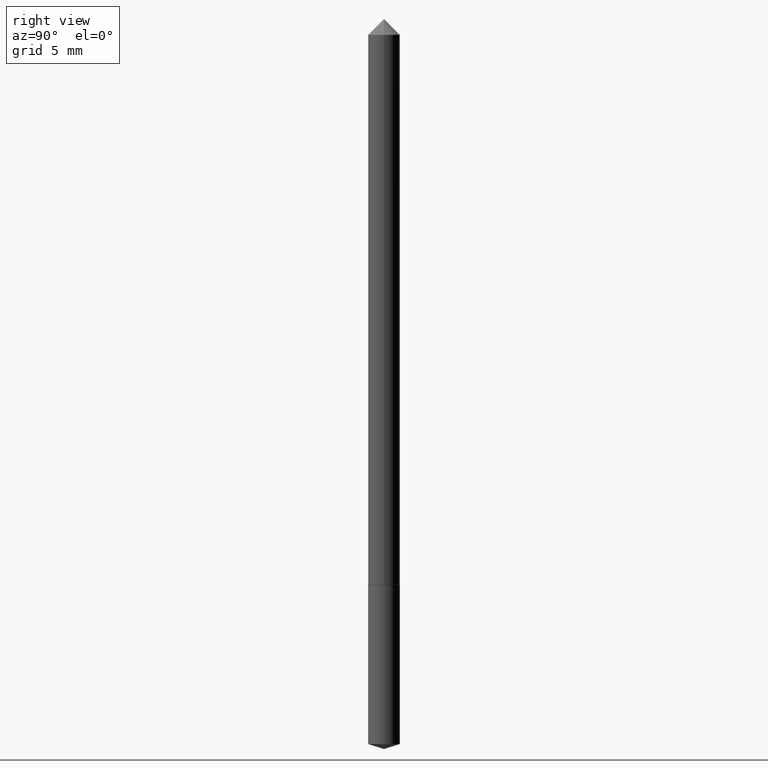
[diagram: clean part render]
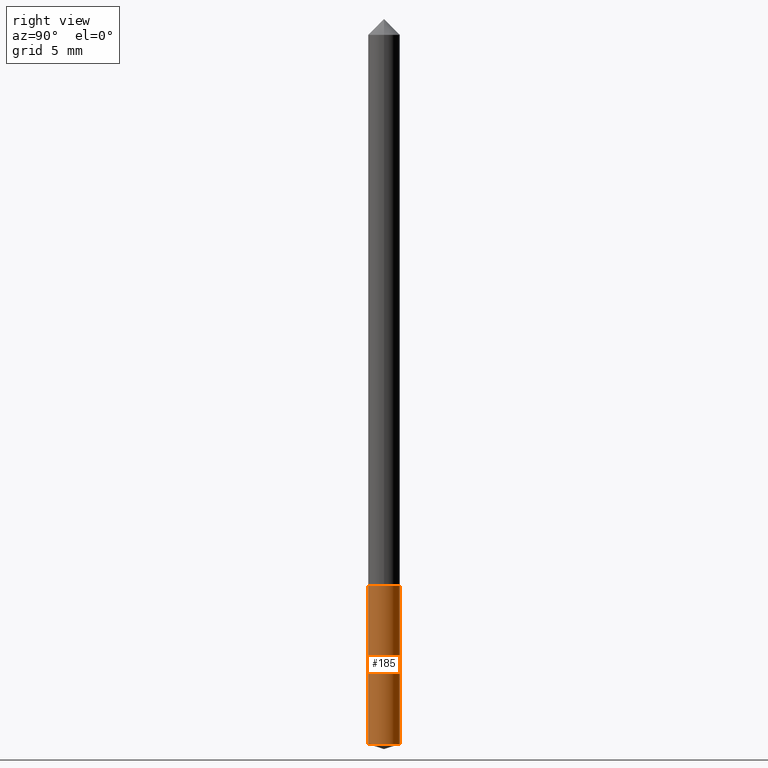
[diagram: same view with one face highlighted and labeled with its STEP entity id]
A machine part, right view. The second image highlights one B-rep face of the part: STEP entity #185.
In plain terms, the highlighted cylindrical surface (edge-blend (fillet) strip) has radius 0.6502 mm, axis along (-0, 0, 1).
Its self-contained STEP definition (entity closure, byte-faithful):
#6 = CARTESIAN_POINT ( 'NONE',  ( 2.243228535913626021E-29, -3.202735832120817848E-15, -0.9173000000000001153 ) ) ;
#22 = CARTESIAN_POINT ( 'NONE',  ( 1.818989403546143265E-16, 0.02559999999999589687, -1.173028351004698377 ) ) ;
#23 = VERTEX_POINT ( 'NONE', #22 ) ;
#27 = VECTOR ( 'NONE', #122, 39.37007874015748143 ) ;
#47 = EDGE_LOOP ( 'NONE', ( #64, #104, #87, #77 ) ) ;
#52 = DIRECTION ( 'NONE',  ( -2.445337482800842001E-29, 3.491669401403918305E-15, 1.000000000000000000 ) ) ;
#60 = VERTEX_POINT ( 'NONE', #350 ) ;
#64 = ORIENTED_EDGE ( 'NONE', *, *, #285, .T. ) ;
#66 = EDGE_CURVE ( 'NONE', #108, #60, #102, .T. ) ;
#72 = CARTESIAN_POINT ( 'NONE',  ( -1.787638445487459910E-16, -0.02560000000000320353, -0.9172999999999998932 ) ) ;
#77 = ORIENTED_EDGE ( 'NONE', *, *, #66, .F. ) ;
#79 = CARTESIAN_POINT ( 'NONE',  ( 2.868570658040264674E-29, -4.095654690395403261E-15, -1.173028351004698155 ) ) ;
#87 = ORIENTED_EDGE ( 'NONE', *, *, #325, .F. ) ;
#102 = LINE ( 'NONE', #72, #27 ) ;
#104 = ORIENTED_EDGE ( 'NONE', *, *, #332, .T. ) ;
#108 = VERTEX_POINT ( 'NONE', #236 ) ;
#118 = DIRECTION ( 'NONE',  ( -2.445337482800842001E-29, 3.491669401403918700E-15, 1.000000000000000000 ) ) ;
#122 = DIRECTION ( 'NONE',  ( -2.445337482800842001E-29, 3.491669401403918700E-15, 1.000000000000000000 ) ) ;
#145 = CARTESIAN_POINT ( 'NONE',  ( 1.818989403546144004E-16, 0.02559999999999680240, -0.9173000000000002263 ) ) ;
#162 = DIRECTION ( 'NONE',  ( -6.982962677686265133E-15, -1.000000000000000000, 5.335640612625512847E-15 ) ) ;
#184 = VERTEX_POINT ( 'NONE', #145 ) ;
#185 = ADVANCED_FACE ( 'NONE', ( #336 ), #278, .T. ) ;
#216 = CARTESIAN_POINT ( 'NONE',  ( 2.243228535913626021E-29, -3.202735832120817848E-15, -0.9173000000000001153 ) ) ;
#233 = LINE ( 'NONE', #287, #330 ) ;
#236 = CARTESIAN_POINT ( 'NONE',  ( -1.787638445487397048E-16, -0.02560000000000409517, -1.173028351004697933 ) ) ;
#246 = DIRECTION ( 'NONE',  ( -2.445337482800842001E-29, 3.491669401403918305E-15, 1.000000000000000000 ) ) ;
#278 = CYLINDRICAL_SURFACE ( 'NONE', #351, 0.02560000000000000470 ) ;
#285 = EDGE_CURVE ( 'NONE', #108, #23, #363, .T. ) ;
#287 = CARTESIAN_POINT ( 'NONE',  ( 1.818989403546080895E-16, 0.02559999999999680240, -0.9173000000000002263 ) ) ;
#292 = AXIS2_PLACEMENT_3D ( 'NONE', #79, #52, #301 ) ;
#301 = DIRECTION ( 'NONE',  ( -6.982962677686265133E-15, -1.000000000000000000, 5.335640612625512847E-15 ) ) ;
#302 = CIRCLE ( 'NONE', #335, 0.02560000000000000470 ) ;
#312 = DIRECTION ( 'NONE',  ( -6.982962677686265133E-15, -1.000000000000000000, 5.335640612625512847E-15 ) ) ;
#325 = EDGE_CURVE ( 'NONE', #60, #184, #302, .T. ) ;
#330 = VECTOR ( 'NONE', #118, 39.37007874015748143 ) ;
#332 = EDGE_CURVE ( 'NONE', #23, #184, #233, .T. ) ;
#335 = AXIS2_PLACEMENT_3D ( 'NONE', #6, #346, #312 ) ;
#336 = FACE_OUTER_BOUND ( 'NONE', #47, .T. ) ;
#346 = DIRECTION ( 'NONE',  ( -2.445337482800842001E-29, 3.491669401403918305E-15, 1.000000000000000000 ) ) ;
#350 = CARTESIAN_POINT ( 'NONE',  ( -1.787638445487459910E-16, -0.02560000000000320353, -0.9172999999999998932 ) ) ;
#351 = AXIS2_PLACEMENT_3D ( 'NONE', #216, #246, #162 ) ;
#363 = CIRCLE ( 'NONE', #292, 0.02560000000000000470 ) ;